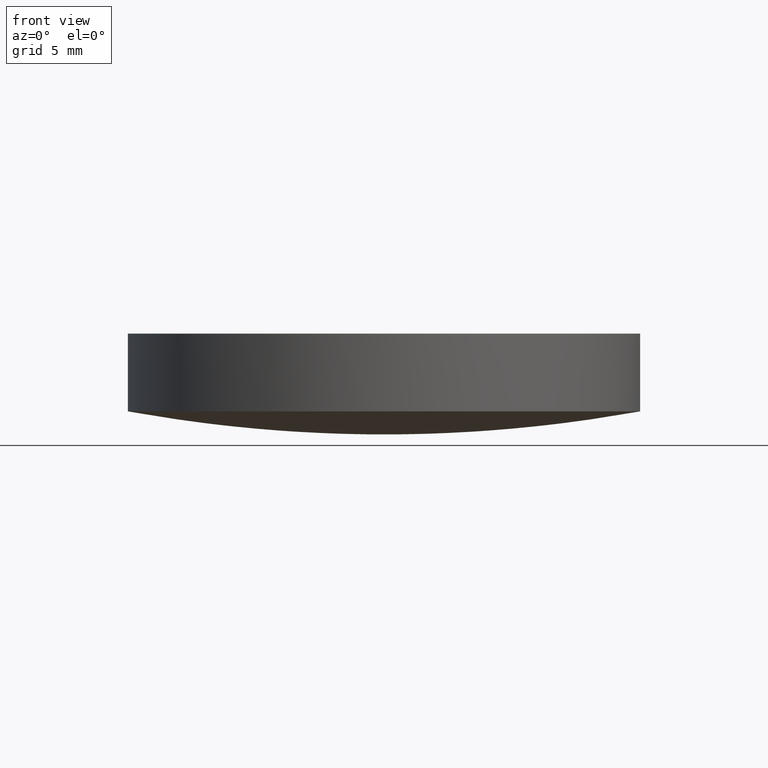
[diagram: clean part render]
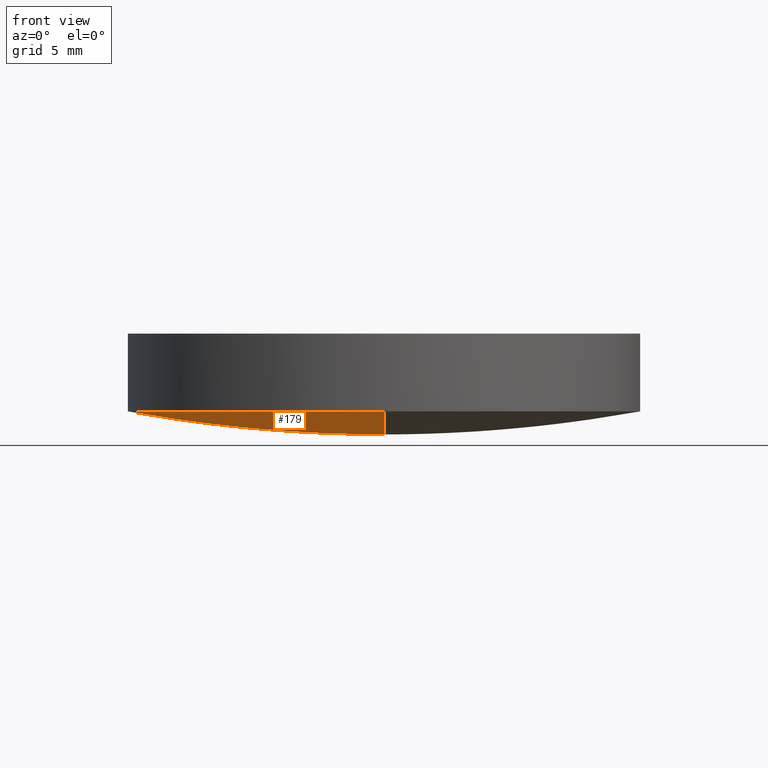
[diagram: same view with one face highlighted and labeled with its STEP entity id]
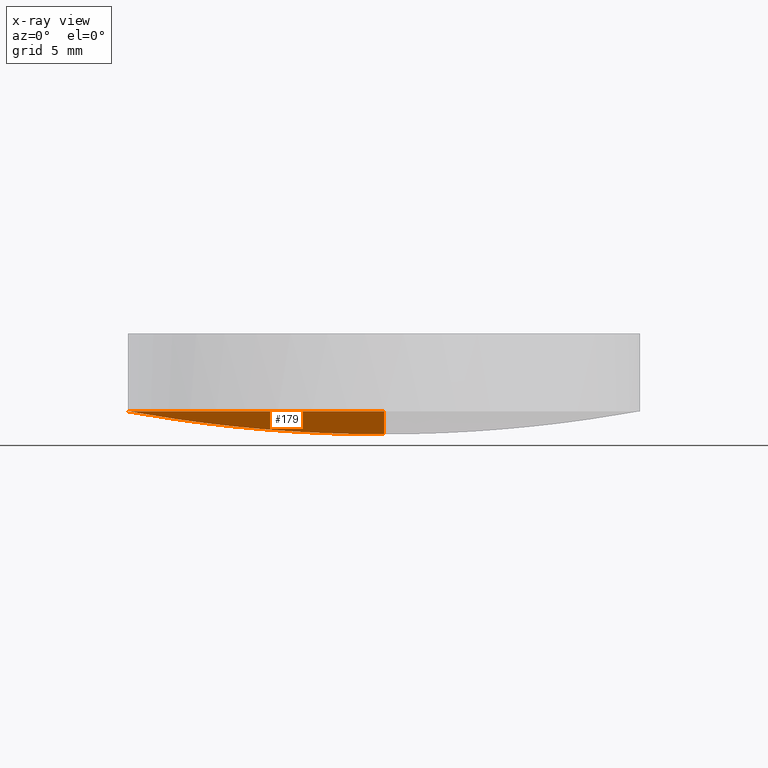
[diagram: x-ray of the same camera — body ghosted, the highlighted face saturated]
A machine part, front view. The second image highlights one B-rep face of the part: STEP entity #179.
The next image is the same camera in x-ray: the body ghosted, the highlighted face saturated — about 0% of this face is hidden behind the body in this view.
In plain terms, the highlighted face is a freeform B-spline surface patch.
Its self-contained STEP definition (entity closure, byte-faithful):
#2 = CARTESIAN_POINT ( 'NONE',  ( -5.646186924660569595, 3.457292372336599873E-16, 0.2208187616476849913 ) ) ;
#3 = CARTESIAN_POINT ( 'NONE',  ( -0.7056909850177069954, 4.321111029945389928E-17, 0.000000000000000000 ) ) ;
#6 = CARTESIAN_POINT ( 'NONE',  ( 5.646186924660570483, 5.646186924660570483, 0.2208187616476849913 ) ) ;
#13 = CARTESIAN_POINT ( 'NONE',  ( -4.753890723760700398E-16, -3.881846363433560043, 0.1011880740004540008 ) ) ;
#19 = CARTESIAN_POINT ( 'NONE',  ( -8.291244220368971796, -8.291244220368971796, 0.4872908528978099896 ) ) ;
#22 = CARTESIAN_POINT ( 'NONE',  ( 11.47043146041010075, -2.107084075924560334E-15, 0.9228980148827420349 ) ) ;
#24 = DIRECTION ( 'NONE',  ( -1.000000000000000000, 0.000000000000000000, 0.000000000000000000 ) ) ;
#25 = B_SPLINE_CURVE_WITH_KNOTS ( 'NONE', 3,
 ( #234, #50, #140, #146, #233, #172, #13, #78, #110, #204 ),
 .UNSPECIFIED., .F., .F.,
 ( 4, 1, 1, 1, 1, 1, 1, 4 ),
 ( 0.000000000000000000, 0.2934918748177540171, 0.3352534923770330022, 0.4186732724612799994, 0.5851388632198070150, 0.6682250307714420190, 0.8341866061546360234, 1.000000000000000000 ),
 .UNSPECIFIED. ) ;
#29 = CARTESIAN_POINT ( 'NONE',  ( 0.000000000000000000, 0.000000000000000000, 0.000000000000000000 ) ) ;
#30 = CARTESIAN_POINT ( 'NONE',  ( 3.881846363433560043, -7.130836085641050103E-16, 0.1011880740004540008 ) ) ;
#32 = CARTESIAN_POINT ( 'NONE',  ( -2.117681902288059970, 1.296706181624679909E-16, 0.02132316921280770147 ) ) ;
#34 = CARTESIAN_POINT ( 'NONE',  ( -3.881846363433560043, 3.881846363433560043, 0.1011880740004540008 ) ) ;
#39 = CARTESIAN_POINT ( 'NONE',  ( 7.057820453293380147, 7.057820453293370377, 0.3483339205862859833 ) ) ;
#42 = ORIENTED_EDGE ( 'NONE', *, *, #170, .T. ) ;
#44 = ORIENTED_EDGE ( 'NONE', *, *, #109, .T. ) ;
#45 = AXIS2_PLACEMENT_3D ( 'NONE', #363, #241, #24 ) ;
#50 = CARTESIAN_POINT ( 'NONE',  ( -1.404722717283039960E-15, -11.47043146041010075, 0.9228980148827420349 ) ) ;
#51 = CARTESIAN_POINT ( 'NONE',  ( 0.000000000000000000, 8.291244220368971796, 0.4872908528978099896 ) ) ;
#54 = CARTESIAN_POINT ( 'NONE',  ( -8.291244220368971796, 5.076922847711930194E-16, 0.4872908528978099896 ) ) ;
#56 = CARTESIAN_POINT ( 'NONE',  ( 0.000000000000000000, 12.69999999999999929, 1.142824642375869892 ) ) ;
#58 = CARTESIAN_POINT ( 'NONE',  ( -1.231959341978499956E-15, -10.05971144362800018, 0.7061987570028900318 ) ) ;
#60 = CARTESIAN_POINT ( 'NONE',  ( -1.404722717283039960E-15, -11.47043146041010075, 0.9228980148827420349 ) ) ;
#63 = CARTESIAN_POINT ( 'NONE',  ( -2.117681902288059970, -2.117681902288059970, 0.02132316921280770147 ) ) ;
#64 = CARTESIAN_POINT ( 'NONE',  ( -3.851859888774471706E-31, 12.70000000000000284, 1.142824642375869892 ) ) ;
#65 = CARTESIAN_POINT ( 'NONE',  ( 0.000000000000000000, 7.057820453293380147, 0.3483339205862859833 ) ) ;
#70 = CARTESIAN_POINT ( 'NONE',  ( -7.057820453293380147, -7.057820453293380147, 0.3483339205862859833 ) ) ;
#73 = CARTESIAN_POINT ( 'NONE',  ( -5.646186924660570483, -5.646186924660570483, 0.2208187616476849913 ) ) ;
#78 = CARTESIAN_POINT ( 'NONE',  ( -2.593412363249349958E-16, -2.117681902288059970, 0.02132316921280770147 ) ) ;
#84 = CARTESIAN_POINT ( 'NONE',  ( -12.69999999999999929, -12.69999999999999929, 1.142824642375869892 ) ) ;
#86 = CARTESIAN_POINT ( 'NONE',  ( -12.69999999999999929, 7.776507174585690191E-16, 1.142824642375869892 ) ) ;
#90 = FACE_OUTER_BOUND ( 'NONE', #352, .T. ) ;
#95 = CARTESIAN_POINT ( 'NONE',  ( 0.000000000000000000, 0.7056909850177069954, 0.000000000000000000 ) ) ;
#98 = CARTESIAN_POINT ( 'NONE',  ( -0.7056909850177069954, 0.7056909850177069954, 0.000000000000000000 ) ) ;
#101 = CARTESIAN_POINT ( 'NONE',  ( 5.646186924660570483, -5.646186924660570483, 0.2208187616476849913 ) ) ;
#105 = CARTESIAN_POINT ( 'NONE',  ( -5.646186924660570483, 5.646186924660570483, 0.2208187616476849913 ) ) ;
#109 = EDGE_CURVE ( 'NONE', #189, #227, #229, .T. ) ;
#110 = CARTESIAN_POINT ( 'NONE',  ( -8.642222059890769995E-17, -0.7056909850177069954, 0.000000000000000000 ) ) ;
#113 = CARTESIAN_POINT ( 'NONE',  ( 0.000000000000000000, 7.057820453293380147, 0.3483339205862859833 ) ) ;
#118 = CARTESIAN_POINT ( 'NONE',  ( 0.000000000000000000, 2.117681902288059970, 0.02132316921280770147 ) ) ;
#120 = CARTESIAN_POINT ( 'NONE',  ( 0.000000000000000000, 10.05971144362800018, 0.7061987570028900318 ) ) ;
#123 = CARTESIAN_POINT ( 'NONE',  ( -2.117681902288059970, 2.117681902288059970, 0.02132316921280770147 ) ) ;
#124 = CARTESIAN_POINT ( 'NONE',  ( 2.117681902288059970, -3.890118544874019760E-16, 0.02132316921280770147 ) ) ;
#127 = CARTESIAN_POINT ( 'NONE',  ( 0.000000000000000000, 0.000000000000000000, 0.000000000000000000 ) ) ;
#128 = CARTESIAN_POINT ( 'NONE',  ( -3.851859888774471706E-31, 12.70000000000000284, 1.142824642375869892 ) ) ;
#129 = CARTESIAN_POINT ( 'NONE',  ( -1.015384569542389983E-15, -8.291244220368971796, 0.4872908528978099896 ) ) ;
#133 = CARTESIAN_POINT ( 'NONE',  ( 0.000000000000000000, 3.881846363433560043, 0.1011880740004540008 ) ) ;
#135 = CIRCLE ( 'NONE', #186, 12.70000000000000284 ) ;
#140 = CARTESIAN_POINT ( 'NONE',  ( -1.231959341978499956E-15, -10.05971144362800018, 0.7061987570028900318 ) ) ;
#146 = CARTESIAN_POINT ( 'NONE',  ( -1.015384569542389983E-15, -8.291244220368971796, 0.4872908528978099896 ) ) ;
#148 = CARTESIAN_POINT ( 'NONE',  ( 0.000000000000000000, 8.291244220368971796, 0.4872908528978099896 ) ) ;
#155 = CARTESIAN_POINT ( 'NONE',  ( 3.881846363433560043, -3.881846363433560043, 0.1011880740004540008 ) ) ;
#156 = CARTESIAN_POINT ( 'NONE',  ( 0.000000000000000000, 0.000000000000000000, 0.000000000000000000 ) ) ;
#158 = CARTESIAN_POINT ( 'NONE',  ( 2.117681902288059970, -2.117681902288059970, 0.02132316921280770147 ) ) ;
#160 = CARTESIAN_POINT ( 'NONE',  ( -3.881846363433560043, 2.376945361880350199E-16, 0.1011880740004540008 ) ) ;
#161 = CARTESIAN_POINT ( 'NONE',  ( 0.7056909850177069954, -0.7056909850177069954, 0.000000000000000000 ) ) ;
#164 = CARTESIAN_POINT ( 'NONE',  ( -6.914584744673199746E-16, -5.646186924660569595, 0.2208187616476849913 ) ) ;
#170 = EDGE_CURVE ( 'NONE', #280, #189, #310, .T. ) ;
#172 = CARTESIAN_POINT ( 'NONE',  ( -6.914584744673199746E-16, -5.646186924660569595, 0.2208187616476849913 ) ) ;
#174 = CARTESIAN_POINT ( 'NONE',  ( 0.000000000000000000, 11.47043146041010075, 0.9228980148827420349 ) ) ;
#178 = CARTESIAN_POINT ( 'NONE',  ( 0.000000000000000000, 11.47043146041010075, 0.9228980148827420349 ) ) ;
#179 = ADVANCED_FACE ( 'NONE', ( #90 ), #311, .T. ) ;
#181 = CARTESIAN_POINT ( 'NONE',  ( -11.47043146041010075, -11.47043146041010075, 0.9228980148827421459 ) ) ;
#184 = CARTESIAN_POINT ( 'NONE',  ( -11.47043146041010075, 11.47043146041010075, 0.9228980148827421459 ) ) ;
#186 = AXIS2_PLACEMENT_3D ( 'NONE', #359, #202, #235 ) ;
#187 = CARTESIAN_POINT ( 'NONE',  ( -0.7056909850177069954, -0.7056909850177069954, 0.000000000000000000 ) ) ;
#189 = VERTEX_POINT ( 'NONE', #64 ) ;
#190 = CARTESIAN_POINT ( 'NONE',  ( 0.000000000000000000, 5.646186924660569595, 0.2208187616476849913 ) ) ;
#193 = VERTEX_POINT ( 'NONE', #405 ) ;
#194 = CARTESIAN_POINT ( 'NONE',  ( 0.000000000000000000, 5.646186924660569595, 0.2208187616476849913 ) ) ;
#201 = CARTESIAN_POINT ( 'NONE',  ( -12.70000000000000107, 6.671230152170136933E-16, 1.142824642375869892 ) ) ;
#202 = DIRECTION ( 'NONE',  ( -0.000000000000000000, -0.000000000000000000, -1.000000000000000000 ) ) ;
#203 = CARTESIAN_POINT ( 'NONE',  ( 0.000000000000000000, 11.47043146041010075, 0.9228980148827420349 ) ) ;
#204 = CARTESIAN_POINT ( 'NONE',  ( 0.000000000000000000, 0.000000000000000000, 0.000000000000000000 ) ) ;
#207 = CARTESIAN_POINT ( 'NONE',  ( 12.69999999999999929, 12.69999999999999929, 1.142824642375869892 ) ) ;
#209 = CARTESIAN_POINT ( 'NONE',  ( -1.555301434917140010E-15, -12.69999999999999929, 1.142824642375869892 ) ) ;
#212 = CARTESIAN_POINT ( 'NONE',  ( 11.47043146041010075, -11.47043146041010075, 0.9228980148827421459 ) ) ;
#214 = CARTESIAN_POINT ( 'NONE',  ( 0.000000000000000000, 12.69999999999999929, 1.142824642375869892 ) ) ;
#217 = CARTESIAN_POINT ( 'NONE',  ( 0.000000000000000000, 0.000000000000000000, 0.000000000000000000 ) ) ;
#219 = CARTESIAN_POINT ( 'NONE',  ( 0.000000000000000000, 0.000000000000000000, 0.000000000000000000 ) ) ;
#220 = ORIENTED_EDGE ( 'NONE', *, *, #292, .T. ) ;
#225 = CARTESIAN_POINT ( 'NONE',  ( 0.000000000000000000, 7.057820453293380147, 0.3483339205862859833 ) ) ;
#227 = VERTEX_POINT ( 'NONE', #127 ) ;
#228 = CARTESIAN_POINT ( 'NONE',  ( 8.291244220368971796, -8.291244220368971796, 0.4872908528978099896 ) ) ;
#229 = B_SPLINE_CURVE_WITH_KNOTS ( 'NONE', 3,
 ( #128, #203, #245, #51, #113, #336, #392, #118, #269, #239 ),
 .UNSPECIFIED., .F., .F.,
 ( 4, 1, 1, 1, 1, 1, 1, 4 ),
 ( 0.000000000000000000, 0.2934918748177540171, 0.3352534923770330022, 0.4186732724612799994, 0.5851388632198070150, 0.6682250307714420190, 0.8341866061546360234, 1.000000000000000000 ),
 .UNSPECIFIED. ) ;
#233 = CARTESIAN_POINT ( 'NONE',  ( -8.643337227082449863E-16, -7.057820453293380147, 0.3483339205862859833 ) ) ;
#234 = CARTESIAN_POINT ( 'NONE',  ( -1.555301434917141588E-15, -12.70000000000000462, 1.142824642375869892 ) ) ;
#235 = DIRECTION ( 'NONE',  ( -1.000000000000000000, 0.000000000000000000, 0.000000000000000000 ) ) ;
#239 = CARTESIAN_POINT ( 'NONE',  ( 0.000000000000000000, 0.000000000000000000, 0.000000000000000000 ) ) ;
#241 = DIRECTION ( 'NONE',  ( -0.000000000000000000, -0.000000000000000000, -1.000000000000000000 ) ) ;
#245 = CARTESIAN_POINT ( 'NONE',  ( 0.000000000000000000, 10.05971144362800018, 0.7061987570028900318 ) ) ;
#247 = CARTESIAN_POINT ( 'NONE',  ( -10.05971144362800018, -10.05971144362800018, 0.7061987570028901429 ) ) ;
#249 = CARTESIAN_POINT ( 'NONE',  ( -2.593412363249349958E-16, -2.117681902288059970, 0.02132316921280770147 ) ) ;
#250 = CARTESIAN_POINT ( 'NONE',  ( 3.881846363433560043, 3.881846363433549829, 0.1011880740004540008 ) ) ;
#253 = CARTESIAN_POINT ( 'NONE',  ( -4.753890723760700398E-16, -3.881846363433560043, 0.1011880740004540008 ) ) ;
#256 = CARTESIAN_POINT ( 'NONE',  ( 0.000000000000000000, 8.291244220368971796, 0.4872908528978099896 ) ) ;
#257 = CARTESIAN_POINT ( 'NONE',  ( 0.000000000000000000, 0.000000000000000000, 0.000000000000000000 ) ) ;
#258 = CARTESIAN_POINT ( 'NONE',  ( 7.057820453293370377, -7.057820453293380147, 0.3483339205862859833 ) ) ;
#266 = CARTESIAN_POINT ( 'NONE',  ( -8.291244220368971796, 8.291244220368971796, 0.4872908528978099896 ) ) ;
#269 = CARTESIAN_POINT ( 'NONE',  ( 0.000000000000000000, 0.7056909850177069954, 0.000000000000000000 ) ) ;
#275 = CARTESIAN_POINT ( 'NONE',  ( 2.117681902288059970, 2.117681902288059970, 0.02132316921280770147 ) ) ;
#278 = CARTESIAN_POINT ( 'NONE',  ( 0.7056909850177069954, 0.7056909850177069954, 0.000000000000000000 ) ) ;
#280 = VERTEX_POINT ( 'NONE', #201 ) ;
#281 = CARTESIAN_POINT ( 'NONE',  ( -3.881846363433560043, -3.881846363433560043, 0.1011880740004540008 ) ) ;
#284 = CARTESIAN_POINT ( 'NONE',  ( 5.646186924660569595, -1.037187711700979962E-15, 0.2208187616476849913 ) ) ;
#292 = EDGE_CURVE ( 'NONE', #193, #280, #135, .T. ) ;
#297 = CARTESIAN_POINT ( 'NONE',  ( 0.000000000000000000, 10.05971144362800018, 0.7061987570028900318 ) ) ;
#298 = EDGE_CURVE ( 'NONE', #193, #227, #25, .T. ) ;
#300 = CARTESIAN_POINT ( 'NONE',  ( 10.05971144362800018, 10.05971144362800018, 0.7061987570028901429 ) ) ;
#302 = CARTESIAN_POINT ( 'NONE',  ( -11.47043146041010075, 7.023613586415189939E-16, 0.9228980148827420349 ) ) ;
#304 = CARTESIAN_POINT ( 'NONE',  ( 12.69999999999999929, -12.69999999999999929, 1.142824642375869892 ) ) ;
#307 = CARTESIAN_POINT ( 'NONE',  ( 10.05971144362800018, -10.05971144362800018, 0.7061987570028901429 ) ) ;
#310 = CIRCLE ( 'NONE', #45, 12.70000000000000284 ) ;
#311 =( BOUNDED_SURFACE ( )  B_SPLINE_SURFACE ( 3, 2, ( 
 ( #214, #342, #86, #84, #209, #304, #338, #207, #56 ),
 ( #178, #184, #302, #181, #60, #212, #22, #400, #174 ),
 ( #120, #340, #397, #247, #58, #307, #333, #300, #297 ),
 ( #148, #266, #54, #19, #129, #228, #379, #382, #256 ),
 ( #65, #353, #350, #70, #316, #258, #320, #39, #225 ),
 ( #194, #105, #2, #73, #164, #101, #284, #6, #190 ),
 ( #133, #34, #160, #281, #253, #155, #30, #250, #313 ),
 ( #378, #123, #32, #63, #249, #158, #124, #275, #346 ),
 ( #95, #98, #3, #187, #375, #161, #312, #278, #317 ),
 ( #219, #402, #373, #257, #156, #380, #344, #29, #217 ) ),
 .UNSPECIFIED., .F., .T., .T. ) 
 B_SPLINE_SURFACE_WITH_KNOTS ( ( 4, 1, 1, 1, 1, 1, 1, 4 ),
 ( 3, 2, 2, 2, 3 ),
 ( 0.000000000000000000, 0.2934918748177540171, 0.3352534923770330022, 0.4186732724612799994, 0.5851388632198070150, 0.6682250307714420190, 0.8341866061546360234, 1.000000000000000000 ),
 ( 0.000000000000000000, 90.00000000000000000, 180.0000000000000000, 270.0000000000000000, 360.0000000000000000 ),
 .UNSPECIFIED. ) 
 GEOMETRIC_REPRESENTATION_ITEM ( )  RATIONAL_B_SPLINE_SURFACE ( (
 ( 1.000000000000000000, 0.7071067811865480168, 1.000000000000000000, 0.7071067811865480168, 1.000000000000000000, 0.7071067811865480168, 1.000000000000000000, 0.7071067811865480168, 1.000000000000000000),
 ( 1.000000000000000000, 0.7071067811865480168, 1.000000000000000000, 0.7071067811865480168, 1.000000000000000000, 0.7071067811865480168, 1.000000000000000000, 0.7071067811865480168, 1.000000000000000000),
 ( 1.000000000000000000, 0.7071067811865480168, 1.000000000000000000, 0.7071067811865480168, 1.000000000000000000, 0.7071067811865480168, 1.000000000000000000, 0.7071067811865480168, 1.000000000000000000),
 ( 1.000000000000000000, 0.7071067811865480168, 1.000000000000000000, 0.7071067811865480168, 1.000000000000000000, 0.7071067811865480168, 1.000000000000000000, 0.7071067811865480168, 1.000000000000000000),
 ( 1.000000000000000000, 0.7071067811865480168, 1.000000000000000000, 0.7071067811865480168, 1.000000000000000000, 0.7071067811865480168, 1.000000000000000000, 0.7071067811865480168, 1.000000000000000000),
 ( 1.000000000000000000, 0.7071067811865480168, 1.000000000000000000, 0.7071067811865480168, 1.000000000000000000, 0.7071067811865480168, 1.000000000000000000, 0.7071067811865480168, 1.000000000000000000),
 ( 1.000000000000000000, 0.7071067811865480168, 1.000000000000000000, 0.7071067811865480168, 1.000000000000000000, 0.7071067811865480168, 1.000000000000000000, 0.7071067811865480168, 1.000000000000000000),
 ( 1.000000000000000000, 0.7071067811865480168, 1.000000000000000000, 0.7071067811865480168, 1.000000000000000000, 0.7071067811865480168, 1.000000000000000000, 0.7071067811865480168, 1.000000000000000000),
 ( 1.000000000000000000, 0.7071067811865480168, 1.000000000000000000, 0.7071067811865480168, 1.000000000000000000, 0.7071067811865480168, 1.000000000000000000, 0.7071067811865480168, 1.000000000000000000),
 ( 1.000000000000000000, 0.7071067811865480168, 1.000000000000000000, 0.7071067811865480168, 1.000000000000000000, 0.7071067811865480168, 1.000000000000000000, 0.7071067811865480168, 1.000000000000000000) ) ) 
 REPRESENTATION_ITEM ( '' )  SURFACE ( )  );
#312 = CARTESIAN_POINT ( 'NONE',  ( 0.7056909850177069954, -1.296333308983620122E-16, 0.000000000000000000 ) ) ;
#313 = CARTESIAN_POINT ( 'NONE',  ( 0.000000000000000000, 3.881846363433560043, 0.1011880740004540008 ) ) ;
#316 = CARTESIAN_POINT ( 'NONE',  ( -8.643337227082449863E-16, -7.057820453293380147, 0.3483339205862859833 ) ) ;
#317 = CARTESIAN_POINT ( 'NONE',  ( 0.000000000000000000, 0.7056909850177069954, 0.000000000000000000 ) ) ;
#319 = ORIENTED_EDGE ( 'NONE', *, *, #298, .F. ) ;
#320 = CARTESIAN_POINT ( 'NONE',  ( 7.057820453293380147, -1.296500584062369945E-15, 0.3483339205862859833 ) ) ;
#333 = CARTESIAN_POINT ( 'NONE',  ( 10.05971144362800018, -1.847939012967749934E-15, 0.7061987570028900318 ) ) ;
#336 = CARTESIAN_POINT ( 'NONE',  ( 0.000000000000000000, 5.646186924660569595, 0.2208187616476849913 ) ) ;
#338 = CARTESIAN_POINT ( 'NONE',  ( 12.69999999999999929, -2.332952152375710015E-15, 1.142824642375869892 ) ) ;
#340 = CARTESIAN_POINT ( 'NONE',  ( -10.05971144362800018, 10.05971144362800018, 0.7061987570028901429 ) ) ;
#342 = CARTESIAN_POINT ( 'NONE',  ( -12.69999999999999929, 12.69999999999999929, 1.142824642375869892 ) ) ;
#344 = CARTESIAN_POINT ( 'NONE',  ( 0.000000000000000000, 0.000000000000000000, 0.000000000000000000 ) ) ;
#346 = CARTESIAN_POINT ( 'NONE',  ( 0.000000000000000000, 2.117681902288059970, 0.02132316921280770147 ) ) ;
#350 = CARTESIAN_POINT ( 'NONE',  ( -7.057820453293380147, 4.321668613541229862E-16, 0.3483339205862859833 ) ) ;
#352 = EDGE_LOOP ( 'NONE', ( #319, #220, #42, #44 ) ) ;
#353 = CARTESIAN_POINT ( 'NONE',  ( -7.057820453293380147, 7.057820453293380147, 0.3483339205862859833 ) ) ;
#359 = CARTESIAN_POINT ( 'NONE',  ( 1.734723475976807094E-15, -1.345898117247522881E-15, 1.142824642375869892 ) ) ;
#363 = CARTESIAN_POINT ( 'NONE',  ( 1.734723475976807094E-15, -1.345898117247522881E-15, 1.142824642375869892 ) ) ;
#373 = CARTESIAN_POINT ( 'NONE',  ( 0.000000000000000000, 0.000000000000000000, 0.000000000000000000 ) ) ;
#375 = CARTESIAN_POINT ( 'NONE',  ( -8.642222059890769995E-17, -0.7056909850177069954, 0.000000000000000000 ) ) ;
#378 = CARTESIAN_POINT ( 'NONE',  ( 0.000000000000000000, 2.117681902288059970, 0.02132316921280770147 ) ) ;
#379 = CARTESIAN_POINT ( 'NONE',  ( 8.291244220368971796, -1.523076854313580044E-15, 0.4872908528978099896 ) ) ;
#380 = CARTESIAN_POINT ( 'NONE',  ( 0.000000000000000000, 0.000000000000000000, 0.000000000000000000 ) ) ;
#382 = CARTESIAN_POINT ( 'NONE',  ( 8.291244220368971796, 8.291244220368971796, 0.4872908528978099896 ) ) ;
#392 = CARTESIAN_POINT ( 'NONE',  ( 0.000000000000000000, 3.881846363433560043, 0.1011880740004540008 ) ) ;
#397 = CARTESIAN_POINT ( 'NONE',  ( -10.05971144362800018, 6.159796709892499782E-16, 0.7061987570028900318 ) ) ;
#400 = CARTESIAN_POINT ( 'NONE',  ( 11.47043146041010075, 11.47043146041010075, 0.9228980148827421459 ) ) ;
#402 = CARTESIAN_POINT ( 'NONE',  ( 0.000000000000000000, 0.000000000000000000, 0.000000000000000000 ) ) ;
#405 = CARTESIAN_POINT ( 'NONE',  ( -1.555301434917141588E-15, -12.70000000000000462, 1.142824642375869892 ) ) ;